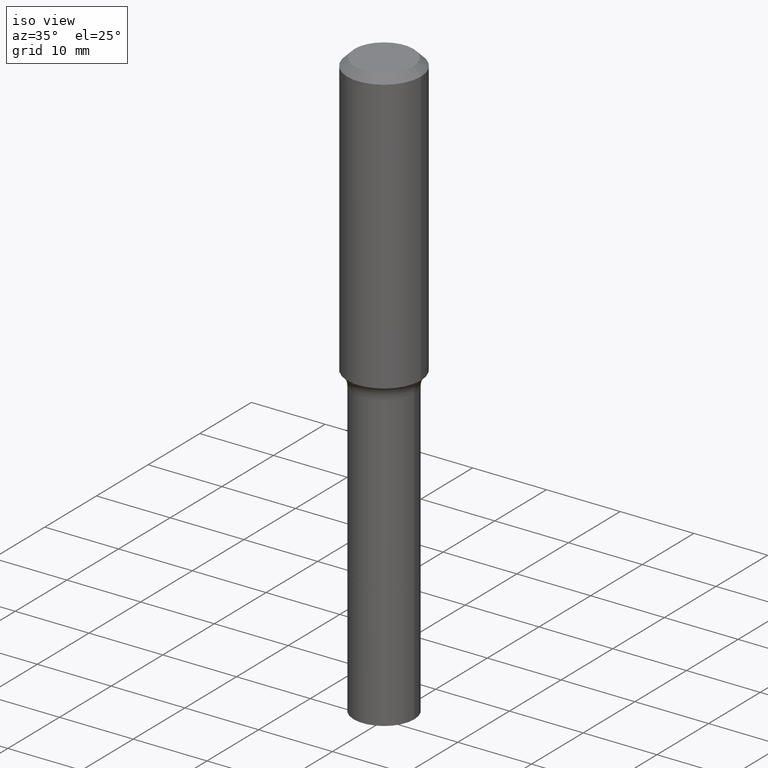
[diagram: clean part render]
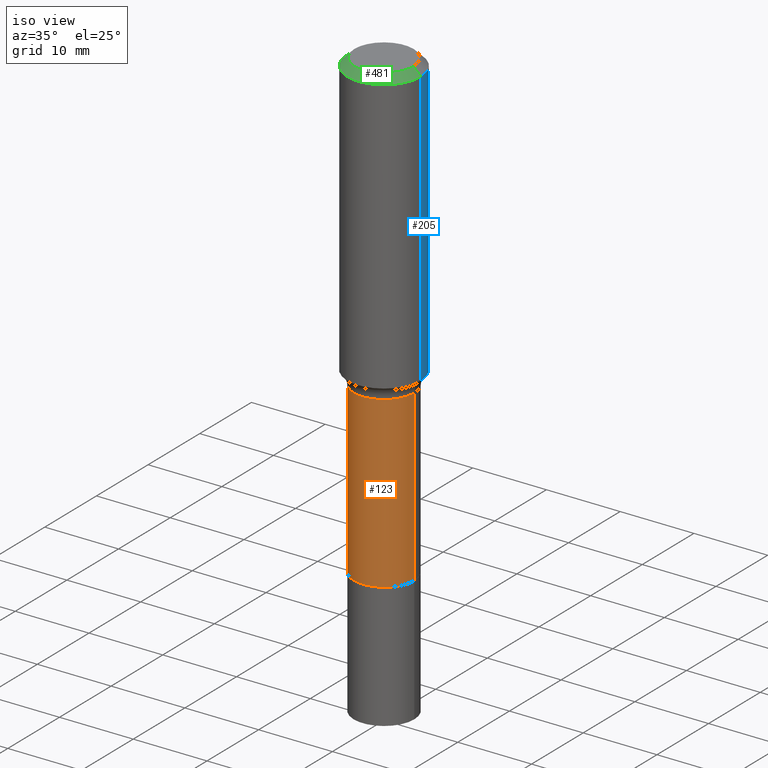
[diagram: same view with three faces highlighted in distinct colors, each labeled with its STEP entity id]
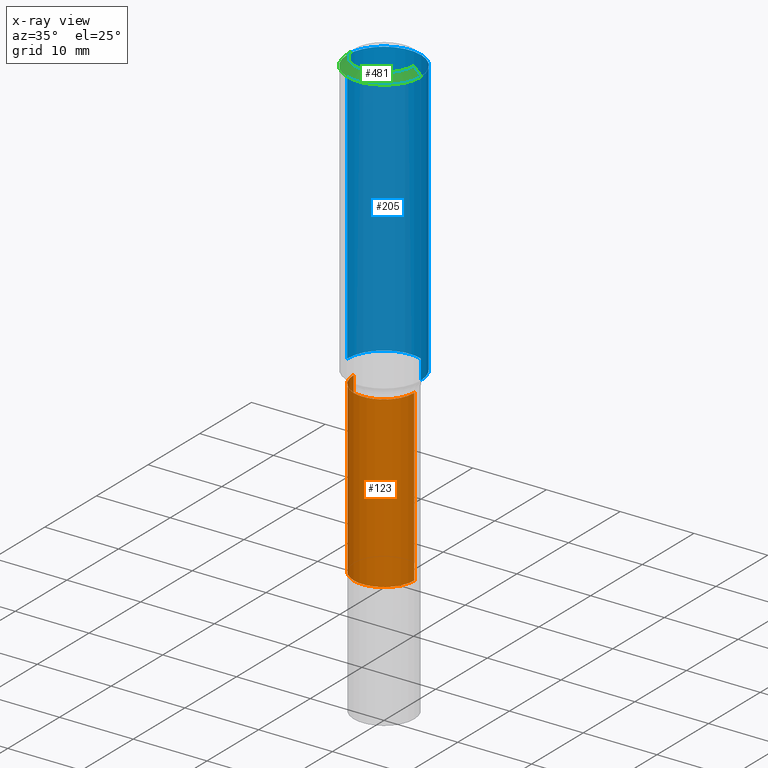
[diagram: x-ray of the same camera — body ghosted, the three highlighted faces saturated]
A machine part, iso view with three faces highlighted in distinct colors.
The next image is the same camera in x-ray (body ghosted, the three faces saturated) — at least one of them is partly hidden behind the body in this view.
Their STEP definitions:

[orange] entity #123 — the highlighted cylindrical surface (partial cylindrical patch) has radius 4.0996 mm, axis along (-0, 0, 1).
#36 = LINE ( 'NONE', #110, #493 ) ;
#42 = ORIENTED_EDGE ( 'NONE', *, *, #133, .F. ) ;
#43 = CARTESIAN_POINT ( 'NONE',  ( 0.1614000000000000157, -9.786273044643450459E-15, -2.480100000000000193 ) ) ;
#48 = VERTEX_POINT ( 'NONE', #431 ) ;
#62 = CIRCLE ( 'NONE', #458, 0.1613999999999998769 ) ;
#65 = DIRECTION ( 'NONE',  ( -2.445468806185136597E-29, 3.491481338843145583E-15, 1.000000000000000000 ) ) ;
#83 = DIRECTION ( 'NONE',  ( -2.445468806185136597E-29, 3.491481338843145583E-15, 1.000000000000000000 ) ) ;
#92 = VERTEX_POINT ( 'NONE', #518 ) ;
#104 = CIRCLE ( 'NONE', #352, 0.1614000000000000157 ) ;
#106 = CARTESIAN_POINT ( 'NONE',  ( 3.850635182219116347E-29, -5.497686516142417553E-15, -1.574600000000000222 ) ) ;
#110 = CARTESIAN_POINT ( 'NONE',  ( 0.1613999999999999602, -1.127050176178562936E-15, 7.870149316134637915E-30 ) ) ;
#123 = ADVANCED_FACE ( 'NONE', ( #153 ), #281, .T. ) ;
#133 = EDGE_CURVE ( 'NONE', #48, #92, #62, .T. ) ;
#138 = CARTESIAN_POINT ( 'NONE',  ( -0.1614000000000000157, -5.931638716786849346E-15, -2.480100000000000193 ) ) ;
#147 = VECTOR ( 'NONE', #516, 39.37007874015748143 ) ;
#153 = FACE_OUTER_BOUND ( 'NONE', #266, .T. ) ;
#175 = ORIENTED_EDGE ( 'NONE', *, *, #274, .T. ) ;
#195 = DIRECTION ( 'NONE',  ( 1.000000000000000000, -6.982962677686265133E-15, 4.876176775795935232E-29 ) ) ;
#203 = LINE ( 'NONE', #357, #147 ) ;
#238 = EDGE_CURVE ( 'NONE', #268, #92, #36, .T. ) ;
#248 = DIRECTION ( 'NONE',  ( 1.000000000000000000, -6.982962677686269866E-15, 0.000000000000000000 ) ) ;
#266 = EDGE_LOOP ( 'NONE', ( #388, #175, #289, #42 ) ) ;
#268 = VERTEX_POINT ( 'NONE', #43 ) ;
#274 = EDGE_CURVE ( 'NONE', #451, #268, #104, .T. ) ;
#281 = CYLINDRICAL_SURFACE ( 'NONE', #304, 0.1613999999999999602 ) ;
#289 = ORIENTED_EDGE ( 'NONE', *, *, #238, .T. ) ;
#304 = AXIS2_PLACEMENT_3D ( 'NONE', #316, #437, #195 ) ;
#316 = CARTESIAN_POINT ( 'NONE',  ( 0.000000000000000000, 0.000000000000000000, 0.000000000000000000 ) ) ;
#352 = AXIS2_PLACEMENT_3D ( 'NONE', #482, #83, #248 ) ;
#357 = CARTESIAN_POINT ( 'NONE',  ( -0.1613999999999999602, 1.146815975516801417E-15, -7.939161235671416085E-30 ) ) ;
#369 = EDGE_CURVE ( 'NONE', #451, #48, #203, .T. ) ;
#388 = ORIENTED_EDGE ( 'NONE', *, *, #369, .F. ) ;
#431 = CARTESIAN_POINT ( 'NONE',  ( -0.1613999999999998769, -5.931638716786850924E-15, -1.574600000000000222 ) ) ;
#437 = DIRECTION ( 'NONE',  ( -2.445468806185136597E-29, 3.491481338843145583E-15, 1.000000000000000000 ) ) ;
#451 = VERTEX_POINT ( 'NONE', #138 ) ;
#458 = AXIS2_PLACEMENT_3D ( 'NONE', #106, #65, #473 ) ;
#473 = DIRECTION ( 'NONE',  ( 1.000000000000000000, -6.982962677686265133E-15, 0.000000000000000000 ) ) ;
#482 = CARTESIAN_POINT ( 'NONE',  ( 6.065007186219757186E-29, -8.659222868464885156E-15, -2.480100000000000193 ) ) ;
#493 = VECTOR ( 'NONE', #513, 39.37007874015748143 ) ;
#513 = DIRECTION ( 'NONE',  ( -2.445468806185136877E-29, 3.491481338843145188E-15, 1.000000000000000000 ) ) ;
#516 = DIRECTION ( 'NONE',  ( -2.445468806185136877E-29, 3.491481338843145188E-15, 1.000000000000000000 ) ) ;
#518 = CARTESIAN_POINT ( 'NONE',  ( 0.1613999999999998769, -6.624736692320980489E-15, -1.574600000000000222 ) ) ;

[blue] entity #205 — the highlighted cylindrical surface (partial cylindrical patch) has radius 5 mm, axis along (-0, 0, 1).
#8 = DIRECTION ( 'NONE',  ( 1.000000000000000000, -6.982962677686266711E-15, 0.000000000000000000 ) ) ;
#16 = DIRECTION ( 'NONE',  ( -2.445468806185136597E-29, 3.491481338843145583E-15, 1.000000000000000000 ) ) ;
#46 = CARTESIAN_POINT ( 'NONE',  ( 9.627810689950950651E-31, -1.374596203102556054E-16, -0.03937000000000027977 ) ) ;
#64 = VERTEX_POINT ( 'NONE', #323 ) ;
#68 = DIRECTION ( 'NONE',  ( -2.445468806185136877E-29, 3.491481338843145188E-15, 1.000000000000000000 ) ) ;
#76 = DIRECTION ( 'NONE',  ( 1.000000000000000000, -6.982962677686266711E-15, 4.876176775795935793E-29 ) ) ;
#79 = AXIS2_PLACEMENT_3D ( 'NONE', #93, #16, #8 ) ;
#93 = CARTESIAN_POINT ( 'NONE',  ( 3.680605871854049505E-29, -5.254929723377562819E-15, -1.505071691180429383 ) ) ;
#127 = DIRECTION ( 'NONE',  ( 1.000000000000000000, -6.982962677686265922E-15, 0.000000000000000000 ) ) ;
#152 = EDGE_CURVE ( 'NONE', #254, #64, #242, .T. ) ;
#164 = LINE ( 'NONE', #215, #501 ) ;
#205 = ADVANCED_FACE ( 'NONE', ( #480 ), #356, .T. ) ;
#215 = CARTESIAN_POINT ( 'NONE',  ( 0.1968500000000001082, -1.374596203102542397E-15, 9.598753983154305062E-30 ) ) ;
#218 = DIRECTION ( 'NONE',  ( -2.445468806185136597E-29, 3.491481338843145583E-15, 1.000000000000000000 ) ) ;
#223 = AXIS2_PLACEMENT_3D ( 'NONE', #46, #218, #127 ) ;
#242 = LINE ( 'NONE', #477, #342 ) ;
#254 = VERTEX_POINT ( 'NONE', #515 ) ;
#270 = EDGE_CURVE ( 'NONE', #404, #426, #164, .T. ) ;
#284 = DIRECTION ( 'NONE',  ( -2.445468806185136877E-29, 3.491481338843145188E-15, 1.000000000000000000 ) ) ;
#312 = CARTESIAN_POINT ( 'NONE',  ( 0.000000000000000000, 0.000000000000000000, 0.000000000000000000 ) ) ;
#323 = CARTESIAN_POINT ( 'NONE',  ( -0.1968500000000000250, -1.297491296500151018E-15, -0.03937000000000027977 ) ) ;
#334 = CARTESIAN_POINT ( 'NONE',  ( 0.1968500000000000250, -1.512055823412797189E-15, -0.03937000000000027977 ) ) ;
#342 = VECTOR ( 'NONE', #68, 39.37007874015748143 ) ;
#347 = ORIENTED_EDGE ( 'NONE', *, *, #270, .F. ) ;
#356 = CYLINDRICAL_SURFACE ( 'NONE', #410, 0.1968500000000001082 ) ;
#372 = ORIENTED_EDGE ( 'NONE', *, *, #453, .T. ) ;
#403 = CIRCLE ( 'NONE', #223, 0.1968500000000000250 ) ;
#404 = VERTEX_POINT ( 'NONE', #498 ) ;
#408 = EDGE_LOOP ( 'NONE', ( #372, #499, #502, #347 ) ) ;
#410 = AXIS2_PLACEMENT_3D ( 'NONE', #312, #475, #76 ) ;
#426 = VERTEX_POINT ( 'NONE', #334 ) ;
#453 = EDGE_CURVE ( 'NONE', #404, #254, #510, .T. ) ;
#471 = EDGE_CURVE ( 'NONE', #426, #64, #403, .T. ) ;
#475 = DIRECTION ( 'NONE',  ( -2.445468806185136597E-29, 3.491481338843145583E-15, 1.000000000000000000 ) ) ;
#477 = CARTESIAN_POINT ( 'NONE',  ( -0.1968500000000001082, 1.398703375343757985E-15, -9.682923725166787881E-30 ) ) ;
#480 = FACE_OUTER_BOUND ( 'NONE', #408, .T. ) ;
#498 = CARTESIAN_POINT ( 'NONE',  ( 0.1968500000000001915, -6.629525926480106005E-15, -1.505071691180429383 ) ) ;
#499 = ORIENTED_EDGE ( 'NONE', *, *, #152, .T. ) ;
#501 = VECTOR ( 'NONE', #284, 39.37007874015748143 ) ;
#502 = ORIENTED_EDGE ( 'NONE', *, *, #471, .F. ) ;
#510 = CIRCLE ( 'NONE', #79, 0.1968500000000001915 ) ;
#515 = CARTESIAN_POINT ( 'NONE',  ( -0.1968500000000001915, -3.856226348033804243E-15, -1.505071691180429383 ) ) ;

[green] entity #481 — the highlighted conical surface has half-angle 45 deg.
#7 = AXIS2_PLACEMENT_3D ( 'NONE', #314, #38, #199 ) ;
#38 = DIRECTION ( 'NONE',  ( -2.445468806185136597E-29, 3.491481338843145583E-15, 1.000000000000000000 ) ) ;
#52 = VERTEX_POINT ( 'NONE', #462 ) ;
#64 = VERTEX_POINT ( 'NONE', #323 ) ;
#73 = DIRECTION ( 'NONE',  ( 1.000000000000000000, -6.982962677686265922E-15, 4.876223630392693006E-29 ) ) ;
#102 = EDGE_LOOP ( 'NONE', ( #428, #452, #212, #143 ) ) ;
#103 = DIRECTION ( 'NONE',  ( 0.7071067811865450192, -7.319954787623246579E-15, -0.7071067811865500152 ) ) ;
#119 = CARTESIAN_POINT ( 'NONE',  ( -9.427742298522567634E-47, 1.346031739168368355E-32, 3.855188123715870730E-18 ) ) ;
#143 = ORIENTED_EDGE ( 'NONE', *, *, #182, .T. ) ;
#160 = CIRCLE ( 'NONE', #7, 0.1968500000000000250 ) ;
#169 = AXIS2_PLACEMENT_3D ( 'NONE', #119, #443, #73 ) ;
#174 = DIRECTION ( 'NONE',  ( -0.7071067811865450192, 2.468850131082230634E-15, -0.7071067811865500152 ) ) ;
#182 = EDGE_CURVE ( 'NONE', #64, #426, #160, .T. ) ;
#198 = VECTOR ( 'NONE', #174, 39.37007874015748143 ) ;
#199 = DIRECTION ( 'NONE',  ( 1.000000000000000000, -6.982962677686265922E-15, 0.000000000000000000 ) ) ;
#212 = ORIENTED_EDGE ( 'NONE', *, *, #438, .T. ) ;
#221 = LINE ( 'NONE', #377, #198 ) ;
#226 = CARTESIAN_POINT ( 'NONE',  ( 0.1968500000000000250, -1.487948651171581601E-15, -0.03937000000000027977 ) ) ;
#229 = CARTESIAN_POINT ( 'NONE',  ( 9.627810689950950651E-31, -1.374596203102556054E-16, -0.03937000000000027977 ) ) ;
#255 = CARTESIAN_POINT ( 'NONE',  ( -0.1574800000000000089, 1.168406772637159618E-15, 3.855188123707939751E-18 ) ) ;
#269 = FACE_OUTER_BOUND ( 'NONE', #102, .T. ) ;
#286 = VECTOR ( 'NONE', #103, 39.37007874015748143 ) ;
#314 = CARTESIAN_POINT ( 'NONE',  ( 9.627810689950950651E-31, -1.374596203102556054E-16, -0.03937000000000027977 ) ) ;
#323 = CARTESIAN_POINT ( 'NONE',  ( -0.1968500000000000250, -1.297491296500151018E-15, -0.03937000000000027977 ) ) ;
#334 = CARTESIAN_POINT ( 'NONE',  ( 0.1968500000000000250, -1.512055823412797189E-15, -0.03937000000000027977 ) ) ;
#339 = EDGE_CURVE ( 'NONE', #465, #52, #484, .T. ) ;
#348 = DIRECTION ( 'NONE',  ( 2.445468806185136597E-29, -3.491481338843145583E-15, -1.000000000000000000 ) ) ;
#377 = CARTESIAN_POINT ( 'NONE',  ( -0.1968500000000000250, 1.237136582792286225E-15, -0.03937000000000027977 ) ) ;
#385 = LINE ( 'NONE', #226, #286 ) ;
#397 = AXIS2_PLACEMENT_3D ( 'NONE', #229, #348, #503 ) ;
#424 = CONICAL_SURFACE ( 'NONE', #397, 0.1968500000000000250, 0.7853981633974447263 ) ;
#426 = VERTEX_POINT ( 'NONE', #334 ) ;
#428 = ORIENTED_EDGE ( 'NONE', *, *, #506, .F. ) ;
#438 = EDGE_CURVE ( 'NONE', #465, #64, #221, .T. ) ;
#443 = DIRECTION ( 'NONE',  ( -2.445468806185136597E-29, 3.491481338843145583E-15, 1.000000000000000000 ) ) ;
#452 = ORIENTED_EDGE ( 'NONE', *, *, #339, .F. ) ;
#462 = CARTESIAN_POINT ( 'NONE',  ( 0.1574800000000000089, -1.284169937930321189E-15, 3.855188123724205385E-18 ) ) ;
#465 = VERTEX_POINT ( 'NONE', #255 ) ;
#481 = ADVANCED_FACE ( 'NONE', ( #269 ), #424, .T. ) ;
#484 = CIRCLE ( 'NONE', #169, 0.1574800000000000089 ) ;
#503 = DIRECTION ( 'NONE',  ( -1.000000000000000000, 6.982962677686265922E-15, 0.000000000000000000 ) ) ;
#506 = EDGE_CURVE ( 'NONE', #52, #426, #385, .T. ) ;